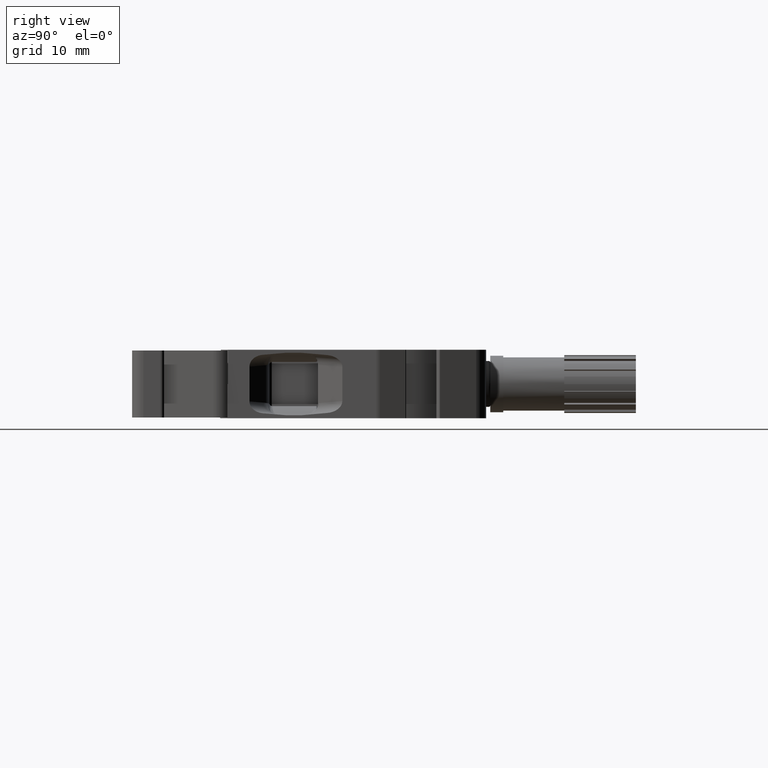
[diagram: clean part render]
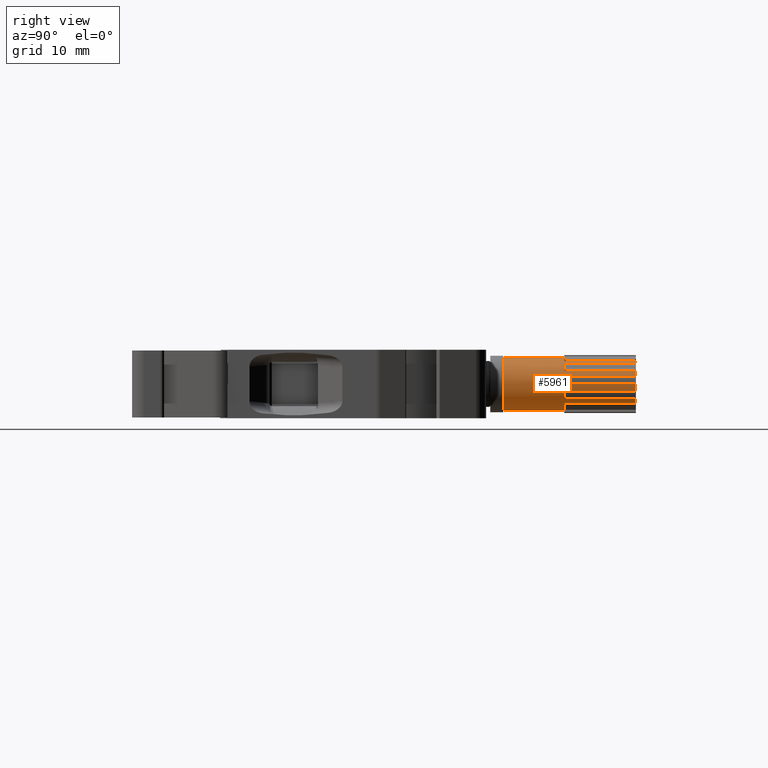
[diagram: same view with one face highlighted and labeled with its STEP entity id]
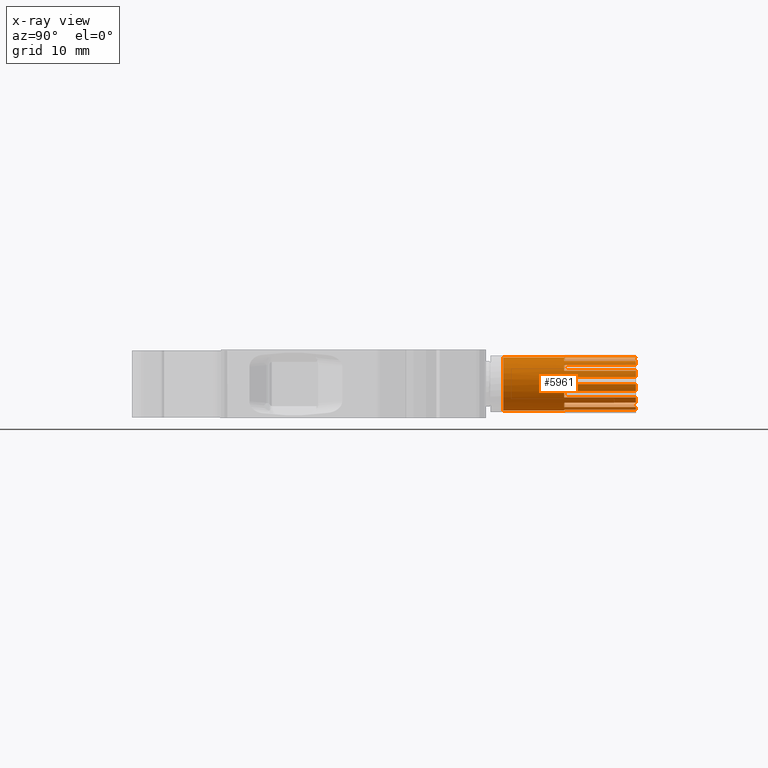
[diagram: x-ray of the same camera — body ghosted, the highlighted face saturated]
A machine part, right view. The second image highlights one B-rep face of the part: STEP entity #5961.
The next image is the same camera in x-ray: the body ghosted, the highlighted face saturated — about 0% of this face is hidden behind the body in this view.
In plain terms, the highlighted cylindrical surface (edge-blend (fillet) strip) has radius 3.5 mm, axis along (0, -1, 0).
Its self-contained STEP definition (entity closure, byte-faithful):
#2206 = VECTOR ( 'NONE', #15414, 1000.000000000000000 ) ;
#2215 = VECTOR ( 'NONE', #15723, 1000.000000000000000 ) ;
#2219 = VECTOR ( 'NONE', #14709, 1000.000000000000000 ) ;
#2229 = VECTOR ( 'NONE', #15489, 1000.000000000000000 ) ;
#2231 = VECTOR ( 'NONE', #15722, 1000.000000000000000 ) ;
#2243 = VECTOR ( 'NONE', #14828, 1000.000000000000000 ) ;
#2257 = VECTOR ( 'NONE', #15692, 1000.000000000000000 ) ;
#2266 = VECTOR ( 'NONE', #14710, 1000.000000000000000 ) ;
#2268 = VECTOR ( 'NONE', #15488, 1000.000000000000000 ) ;
#2277 = VECTOR ( 'NONE', #15846, 1000.000000000000000 ) ;
#2279 = VECTOR ( 'NONE', #14728, 1000.000000000000000 ) ;
#2291 = VECTOR ( 'NONE', #15646, 1000.000000000000000 ) ;
#2325 = VECTOR ( 'NONE', #15430, 1000.000000000000000 ) ;
#2330 = VECTOR ( 'NONE', #15442, 1000.000000000000000 ) ;
#4943 = ORIENTED_EDGE ( 'NONE', *, *, #7966, .T. ) ;
#4948 = ORIENTED_EDGE ( 'NONE', *, *, #7987, .T. ) ;
#4949 = ORIENTED_EDGE ( 'NONE', *, *, #7938, .T. ) ;
#4952 = ORIENTED_EDGE ( 'NONE', *, *, #7963, .T. ) ;
#4958 = ORIENTED_EDGE ( 'NONE', *, *, #7967, .F. ) ;
#4959 = ORIENTED_EDGE ( 'NONE', *, *, #7969, .T. ) ;
#4964 = ORIENTED_EDGE ( 'NONE', *, *, #7976, .T. ) ;
#4967 = ORIENTED_EDGE ( 'NONE', *, *, #7973, .T. ) ;
#4972 = ORIENTED_EDGE ( 'NONE', *, *, #7944, .T. ) ;
#4973 = ORIENTED_EDGE ( 'NONE', *, *, #7951, .T. ) ;
#4981 = ORIENTED_EDGE ( 'NONE', *, *, #7940, .T. ) ;
#4988 = ORIENTED_EDGE ( 'NONE', *, *, #7962, .T. ) ;
#4990 = ORIENTED_EDGE ( 'NONE', *, *, #7998, .T. ) ;
#5002 = ORIENTED_EDGE ( 'NONE', *, *, #7943, .T. ) ;
#5007 = ORIENTED_EDGE ( 'NONE', *, *, #7968, .T. ) ;
#5012 = ORIENTED_EDGE ( 'NONE', *, *, #7946, .T. ) ;
#5013 = ORIENTED_EDGE ( 'NONE', *, *, #7991, .T. ) ;
#5017 = ORIENTED_EDGE ( 'NONE', *, *, #7989, .T. ) ;
#5024 = ORIENTED_EDGE ( 'NONE', *, *, #7952, .T. ) ;
#5034 = ORIENTED_EDGE ( 'NONE', *, *, #7994, .T. ) ;
#5035 = ORIENTED_EDGE ( 'NONE', *, *, #7995, .T. ) ;
#5036 = ORIENTED_EDGE ( 'NONE', *, *, #7945, .T. ) ;
#5044 = ORIENTED_EDGE ( 'NONE', *, *, #8000, .T. ) ;
#5046 = ORIENTED_EDGE ( 'NONE', *, *, #7999, .T. ) ;
#5059 = ORIENTED_EDGE ( 'NONE', *, *, #7977, .T. ) ;
#5066 = ORIENTED_EDGE ( 'NONE', *, *, #7982, .T. ) ;
#5068 = ORIENTED_EDGE ( 'NONE', *, *, #7971, .T. ) ;
#5721 = EDGE_LOOP ( 'NONE', ( #4967, #5002, #4943, #4958, #4973, #4952, #4959, #4948, #4964, #4990, #4972, #4949, #4988, #4981, #5068, #5013, #5024, #5035, #5034, #5046, #5017, #5036, #5044, #5012, #5059, #5007, #5066 ) ) ;
#5961 = ADVANCED_FACE ( 'NONE', ( #20564 ), #20567, .T. ) ;
#7938 = EDGE_CURVE ( 'NONE', #9368, #9336, #15413, .T. ) ;
#7940 = EDGE_CURVE ( 'NONE', #9355, #9354, #15436, .T. ) ;
#7943 = EDGE_CURVE ( 'NONE', #9357, #9334, #15420, .T. ) ;
#7944 = EDGE_CURVE ( 'NONE', #9372, #9368, #21753, .T. ) ;
#7945 = EDGE_CURVE ( 'NONE', #9331, #9347, #15444, .T. ) ;
#7946 = EDGE_CURVE ( 'NONE', #9380, #9381, #15485, .T. ) ;
#7951 = EDGE_CURVE ( 'NONE', #9521, #9364, #21704, .T. ) ;
#7952 = EDGE_CURVE ( 'NONE', #9376, #9348, #21714, .T. ) ;
#7962 = EDGE_CURVE ( 'NONE', #9336, #9355, #21728, .T. ) ;
#7963 = EDGE_CURVE ( 'NONE', #9364, #9326, #15656, .T. ) ;
#7966 = EDGE_CURVE ( 'NONE', #9334, #9377, #21703, .T. ) ;
#7967 = EDGE_CURVE ( 'NONE', #9521, #9377, #15733, .T. ) ;
#7968 = EDGE_CURVE ( 'NONE', #9353, #9374, #15688, .T. ) ;
#7969 = EDGE_CURVE ( 'NONE', #9326, #9369, #21716, .T. ) ;
#7971 = EDGE_CURVE ( 'NONE', #9354, #9344, #21726, .T. ) ;
#7973 = EDGE_CURVE ( 'NONE', #9267, #9357, #15699, .T. ) ;
#7976 = EDGE_CURVE ( 'NONE', #9327, #9378, #21695, .T. ) ;
#7977 = EDGE_CURVE ( 'NONE', #9381, #9353, #21696, .T. ) ;
#7982 = EDGE_CURVE ( 'NONE', #9374, #9267, #21699, .T. ) ;
#7987 = EDGE_CURVE ( 'NONE', #9369, #9327, #15841, .T. ) ;
#7989 = EDGE_CURVE ( 'NONE', #9375, #9331, #21737, .T. ) ;
#7991 = EDGE_CURVE ( 'NONE', #9344, #9376, #15840, .T. ) ;
#7994 = EDGE_CURVE ( 'NONE', #9351, #9343, #21768, .T. ) ;
#7995 = EDGE_CURVE ( 'NONE', #9348, #9351, #14718, .T. ) ;
#7998 = EDGE_CURVE ( 'NONE', #9378, #9372, #14722, .T. ) ;
#7999 = EDGE_CURVE ( 'NONE', #9343, #9375, #14729, .T. ) ;
#8000 = EDGE_CURVE ( 'NONE', #9347, #9380, #21757, .T. ) ;
#9267 = VERTEX_POINT ( 'NONE', #13974 ) ;
#9326 = VERTEX_POINT ( 'NONE', #14211 ) ;
#9327 = VERTEX_POINT ( 'NONE', #14202 ) ;
#9331 = VERTEX_POINT ( 'NONE', #14118 ) ;
#9334 = VERTEX_POINT ( 'NONE', #14103 ) ;
#9336 = VERTEX_POINT ( 'NONE', #14146 ) ;
#9343 = VERTEX_POINT ( 'NONE', #14145 ) ;
#9344 = VERTEX_POINT ( 'NONE', #14120 ) ;
#9347 = VERTEX_POINT ( 'NONE', #14122 ) ;
#9348 = VERTEX_POINT ( 'NONE', #14134 ) ;
#9351 = VERTEX_POINT ( 'NONE', #14167 ) ;
#9353 = VERTEX_POINT ( 'NONE', #14152 ) ;
#9354 = VERTEX_POINT ( 'NONE', #14126 ) ;
#9355 = VERTEX_POINT ( 'NONE', #14130 ) ;
#9357 = VERTEX_POINT ( 'NONE', #14136 ) ;
#9364 = VERTEX_POINT ( 'NONE', #14165 ) ;
#9368 = VERTEX_POINT ( 'NONE', #14178 ) ;
#9369 = VERTEX_POINT ( 'NONE', #14180 ) ;
#9372 = VERTEX_POINT ( 'NONE', #14314 ) ;
#9374 = VERTEX_POINT ( 'NONE', #14246 ) ;
#9375 = VERTEX_POINT ( 'NONE', #14280 ) ;
#9376 = VERTEX_POINT ( 'NONE', #14286 ) ;
#9377 = VERTEX_POINT ( 'NONE', #14325 ) ;
#9378 = VERTEX_POINT ( 'NONE', #14301 ) ;
#9380 = VERTEX_POINT ( 'NONE', #14294 ) ;
#9381 = VERTEX_POINT ( 'NONE', #14288 ) ;
#9521 = VERTEX_POINT ( 'NONE', #14524 ) ;
#13974 = CARTESIAN_POINT ( 'NONE',  ( 459.1252094327940100, 163.1878730676890000, 34.90000000000313900 ) ) ;
#14103 = CARTESIAN_POINT ( 'NONE',  ( 459.1252094327940100, 145.7878730676890200, 34.90000000000313900 ) ) ;
#14118 = CARTESIAN_POINT ( 'NONE',  ( 461.6041506046875000, 153.7878730676890500, 33.87079960059762800 ) ) ;
#14120 = CARTESIAN_POINT ( 'NONE',  ( 462.6251999634724800, 163.1878730676890000, 31.39185842870423900 ) ) ;
#14122 = CARTESIAN_POINT ( 'NONE',  ( 461.6041506046875000, 163.1878730676890000, 33.87079960059763600 ) ) ;
#14126 = CARTESIAN_POINT ( 'NONE',  ( 462.5039058980307200, 163.1878730676890000, 30.48653943937415200 ) ) ;
#14130 = CARTESIAN_POINT ( 'NONE',  ( 462.5039058980307200, 153.7878730676890500, 30.48653943937416200 ) ) ;
#14134 = CARTESIAN_POINT ( 'NONE',  ( 462.5079766836785800, 153.7878730676890500, 32.29826818176122300 ) ) ;
#14136 = CARTESIAN_POINT ( 'NONE',  ( 459.1252094327940100, 153.7878730676890500, 34.90000000000313900 ) ) ;
#14145 = CARTESIAN_POINT ( 'NONE',  ( 462.1598175993221400, 163.1878730676890000, 33.14389027053398700 ) ) ;
#14146 = CARTESIAN_POINT ( 'NONE',  ( 462.1527667917530900, 153.7878730676890500, 29.64389737252208700 ) ) ;
#14152 = CARTESIAN_POINT ( 'NONE',  ( 460.0331113193023500, 153.7878730676890500, 34.78019439744173300 ) ) ;
#14165 = CARTESIAN_POINT ( 'NONE',  ( 460.0290405336543200, 153.7878730676890500, 28.01871483883131100 ) ) ;
#14167 = CARTESIAN_POINT ( 'NONE',  ( 462.5079766836785800, 163.1878730676890000, 32.29826818176123000 ) ) ;
#14178 = CARTESIAN_POINT ( 'NONE',  ( 462.1527667917530900, 163.1878730676890000, 29.64389737252208700 ) ) ;
#14180 = CARTESIAN_POINT ( 'NONE',  ( 460.8716828453469800, 163.1878730676890000, 28.36687774409474400 ) ) ;
#14202 = CARTESIAN_POINT ( 'NONE',  ( 460.8716828453469800, 153.7878730676890500, 28.36687774409474700 ) ) ;
#14211 = CARTESIAN_POINT ( 'NONE',  ( 460.0290405336543200, 163.1878730676890000, 28.01871483883131100 ) ) ;
#14246 = CARTESIAN_POINT ( 'NONE',  ( 460.0331113193023500, 163.1878730676890000, 34.78019439744174000 ) ) ;
#14280 = CARTESIAN_POINT ( 'NONE',  ( 462.1598175993221400, 153.7878730676890500, 33.14389027053398700 ) ) ;
#14286 = CARTESIAN_POINT ( 'NONE',  ( 462.6251999634724800, 153.7878730676890500, 31.39185842870423900 ) ) ;
#14288 = CARTESIAN_POINT ( 'NONE',  ( 460.8787336529158600, 153.7878730676890500, 34.42905147025734900 ) ) ;
#14294 = CARTESIAN_POINT ( 'NONE',  ( 460.8787336529158600, 163.1878730676890000, 34.42905147025734900 ) ) ;
#14301 = CARTESIAN_POINT ( 'NONE',  ( 461.5960090333915700, 153.7878730676890500, 28.92105882810642800 ) ) ;
#14314 = CARTESIAN_POINT ( 'NONE',  ( 461.5960090333915700, 163.1878730676890000, 28.92105882810642100 ) ) ;
#14325 = CARTESIAN_POINT ( 'NONE',  ( 459.1252094327940100, 145.7878730676890200, 27.89999999999686200 ) ) ;
#14524 = CARTESIAN_POINT ( 'NONE',  ( 459.1252094327940100, 153.7878730676890500, 27.89999999999686200 ) ) ;
#14691 = CARTESIAN_POINT ( 'NONE',  ( 462.5079766836785800, 163.1878730676890000, 32.29826818176123000 ) ) ;
#14696 = CARTESIAN_POINT ( 'NONE',  ( 462.5079766836785800, 167.7878730676890500, 32.29826818176123000 ) ) ;
#14700 = CARTESIAN_POINT ( 'NONE',  ( 462.0074195755361200, 153.7878730676890500, 33.40908372642843500 ) ) ;
#14706 = CARTESIAN_POINT ( 'NONE',  ( 462.1598175993221400, 153.7878730676890500, 33.14389027053398700 ) ) ;
#14709 = DIRECTION ( 'NONE',  ( -0.0000000000000000000, 1.000000000000000000, -2.935721225546184700E-020 ) ) ;
#14710 = DIRECTION ( 'NONE',  ( 0.0000000000000000000, -1.000000000000000000, 2.935721225546184700E-020 ) ) ;
#14711 = CARTESIAN_POINT ( 'NONE',  ( 462.3121358191667100, 163.1878730676890000, 32.87883568443891800 ) ) ;
#14712 = CARTESIAN_POINT ( 'NONE',  ( 462.1598175993221400, 163.1878730676890000, 33.14389027053398700 ) ) ;
#14718 = LINE ( 'NONE', #14696, #2219 ) ;
#14722 = LINE ( 'NONE', #14730, #2279 ) ;
#14728 = DIRECTION ( 'NONE',  ( -0.0000000000000000000, 1.000000000000000000, -2.935721225546184700E-020 ) ) ;
#14729 = LINE ( 'NONE', #14731, #2243 ) ;
#14730 = CARTESIAN_POINT ( 'NONE',  ( 461.5960090333915700, 167.7878730676890500, 28.92105882810643500 ) ) ;
#14731 = CARTESIAN_POINT ( 'NONE',  ( 462.1598175993220800, 167.7878730676890500, 33.14389027053396600 ) ) ;
#14733 = CARTESIAN_POINT ( 'NONE',  ( 461.8200730068389200, 153.7878730676890500, 33.65416570908418200 ) ) ;
#14737 = CARTESIAN_POINT ( 'NONE',  ( 462.4295184155748800, 163.1878730676890000, 32.59373234857818600 ) ) ;
#14739 = CARTESIAN_POINT ( 'NONE',  ( 462.6251999634724800, 167.7878730676890500, 31.39185842870423900 ) ) ;
#14742 = CARTESIAN_POINT ( 'NONE',  ( 461.6041506046875000, 153.7878730676890500, 33.87079960059762800 ) ) ;
#14828 = DIRECTION ( 'NONE',  ( 0.0000000000000000000, -1.000000000000000000, 2.935721225546184700E-020 ) ) ;
#14862 = CARTESIAN_POINT ( 'NONE',  ( 461.6041506046875000, 163.1878730676890000, 33.87079960059763600 ) ) ;
#14992 = CARTESIAN_POINT ( 'NONE',  ( 461.3881358824423800, 163.1878730676890000, 34.08752611641015300 ) ) ;
#15197 = CARTESIAN_POINT ( 'NONE',  ( 461.1435546897394600, 163.1878730676890000, 34.27574601915234400 ) ) ;
#15251 = CARTESIAN_POINT ( 'NONE',  ( 460.8787336529158600, 163.1878730676890000, 34.42905147025734900 ) ) ;
#15409 = CARTESIAN_POINT ( 'NONE',  ( 459.1252094327940100, 167.7878730676890500, 34.90000000000313900 ) ) ;
#15413 = LINE ( 'NONE', #15435, #2206 ) ;
#15414 = DIRECTION ( 'NONE',  ( 0.0000000000000000000, -1.000000000000000000, 2.935721225546184700E-020 ) ) ;
#15420 = LINE ( 'NONE', #15409, #2330 ) ;
#15424 = CARTESIAN_POINT ( 'NONE',  ( 461.5960090333915700, 163.1878730676890000, 28.92105882810642100 ) ) ;
#15430 = DIRECTION ( 'NONE',  ( -0.0000000000000000000, 1.000000000000000000, -2.935721225546184700E-020 ) ) ;
#15432 = CARTESIAN_POINT ( 'NONE',  ( 462.1527667917530900, 163.1878730676890000, 29.64389737252208700 ) ) ;
#15435 = CARTESIAN_POINT ( 'NONE',  ( 462.1527667917530400, 167.7878730676890500, 29.64389737252209400 ) ) ;
#15436 = LINE ( 'NONE', #15449, #2325 ) ;
#15442 = DIRECTION ( 'NONE',  ( 0.0000000000000000000, -1.000000000000000000, 2.935721225546184700E-020 ) ) ;
#15443 = CARTESIAN_POINT ( 'NONE',  ( 461.9997343210578200, 163.1878730676890000, 29.38006621848623100 ) ) ;
#15444 = LINE ( 'NONE', #15461, #2229 ) ;
#15445 = CARTESIAN_POINT ( 'NONE',  ( 461.8120319960060000, 163.1878730676890000, 29.13637230782894600 ) ) ;
#15449 = CARTESIAN_POINT ( 'NONE',  ( 462.5039058980307200, 167.7878730676890500, 30.48653943937416200 ) ) ;
#15461 = CARTESIAN_POINT ( 'NONE',  ( 461.6041506046874500, 167.7878730676890500, 33.87079960059762800 ) ) ;
#15485 = LINE ( 'NONE', #15502, #2268 ) ;
#15488 = DIRECTION ( 'NONE',  ( 0.0000000000000000000, -1.000000000000000000, 2.935721225546184700E-020 ) ) ;
#15489 = DIRECTION ( 'NONE',  ( -0.0000000000000000000, 1.000000000000000000, -2.935721225546184700E-020 ) ) ;
#15502 = CARTESIAN_POINT ( 'NONE',  ( 460.8787336529158000, 167.7878730676890500, 34.42905147025732800 ) ) ;
#15515 = CARTESIAN_POINT ( 'NONE',  ( 462.6251999634724800, 153.7878730676890500, 31.39185842870423900 ) ) ;
#15532 = CARTESIAN_POINT ( 'NONE',  ( 462.6259106647060000, 153.7878730676890500, 31.69738269387883300 ) ) ;
#15535 = CARTESIAN_POINT ( 'NONE',  ( 459.7346463122410100, 153.7878730676890500, 27.94002208133110400 ) ) ;
#15536 = CARTESIAN_POINT ( 'NONE',  ( 462.5079766836785800, 153.7878730676890500, 32.29826818176122300 ) ) ;
#15542 = CARTESIAN_POINT ( 'NONE',  ( 459.1252094327940100, 153.7878730676890500, 27.89999999999686200 ) ) ;
#15543 = CARTESIAN_POINT ( 'NONE',  ( 459.4299396539479400, 153.7878730676890500, 27.89999999999686200 ) ) ;
#15546 = CARTESIAN_POINT ( 'NONE',  ( 462.5863891032999500, 153.7878730676890500, 32.00297667467739200 ) ) ;
#15557 = CARTESIAN_POINT ( 'NONE',  ( 460.0290405336543200, 153.7878730676890500, 28.01871483883131100 ) ) ;
#15642 = CARTESIAN_POINT ( 'NONE',  ( 462.4242621844240900, 153.7878730676890500, 30.19195427035879600 ) ) ;
#15646 = DIRECTION ( 'NONE',  ( -0.0000000000000000000, 1.000000000000000000, -2.935721225546184700E-020 ) ) ;
#15651 = CARTESIAN_POINT ( 'NONE',  ( 462.5039058980307200, 153.7878730676890500, 30.48653943937416200 ) ) ;
#15654 = CARTESIAN_POINT ( 'NONE',  ( 460.0290405336543200, 167.7878730676890500, 28.01871483883131500 ) ) ;
#15656 = LINE ( 'NONE', #15654, #2291 ) ;
#15657 = CARTESIAN_POINT ( 'NONE',  ( 459.1252094327940100, 145.7878730676890200, 34.90000000000313900 ) ) ;
#15658 = CARTESIAN_POINT ( 'NONE',  ( 459.5833583614428900, 145.7878730676890200, 34.90000000000314600 ) ) ;
#15660 = CARTESIAN_POINT ( 'NONE',  ( 460.0413270280523600, 145.7878730676890200, 34.80890436834216900 ) ) ;
#15661 = CARTESIAN_POINT ( 'NONE',  ( 461.2761229527081400, 145.7878730676890200, 34.19883394839614300 ) ) ;
#15663 = CARTESIAN_POINT ( 'NONE',  ( 461.9240433811901300, 145.7878730676890200, 33.55091351991412600 ) ) ;
#15665 = CARTESIAN_POINT ( 'NONE',  ( 462.1834617920367200, 145.7878730676890200, 33.16266643129972600 ) ) ;
#15667 = CARTESIAN_POINT ( 'NONE',  ( 462.3058796252515800, 153.7878730676890500, 29.90786707369799700 ) ) ;
#15671 = CARTESIAN_POINT ( 'NONE',  ( 462.5341138011362400, 145.7878730676890200, 32.31611759525830500 ) ) ;
#15672 = CARTESIAN_POINT ( 'NONE',  ( 462.6252094327971300, 145.7878730676890200, 31.85814892864891600 ) ) ;
#15674 = CARTESIAN_POINT ( 'NONE',  ( 462.6252094327971300, 145.7878730676890200, 30.94185107135108500 ) ) ;
#15675 = CARTESIAN_POINT ( 'NONE',  ( 462.1834617920366100, 145.7878730676890200, 29.63733356870027100 ) ) ;
#15676 = CARTESIAN_POINT ( 'NONE',  ( 462.5341138011361900, 145.7878730676890200, 30.48388240474169600 ) ) ;
#15681 = CARTESIAN_POINT ( 'NONE',  ( 460.8878758640937000, 145.7878730676889900, 34.45825235924263600 ) ) ;
#15682 = CARTESIAN_POINT ( 'NONE',  ( 461.9240433811900200, 145.7878730676890200, 29.24908648008587200 ) ) ;
#15683 = CARTESIAN_POINT ( 'NONE',  ( 461.2761229527080800, 145.7878730676890200, 28.60116605160385800 ) ) ;
#15686 = CARTESIAN_POINT ( 'NONE',  ( 462.1527667917530900, 153.7878730676890500, 29.64389737252208700 ) ) ;
#15688 = LINE ( 'NONE', #15689, #2215 ) ;
#15689 = CARTESIAN_POINT ( 'NONE',  ( 460.0331113193023500, 167.7878730676890500, 34.78019439744173300 ) ) ;
#15692 = DIRECTION ( 'NONE',  ( 0.0000000000000000000, -1.000000000000000000, 2.935721225546184700E-020 ) ) ;
#15693 = CARTESIAN_POINT ( 'NONE',  ( 460.8716828453469800, 163.1878730676890000, 28.36687774409474400 ) ) ;
#15699 = LINE ( 'NONE', #15735, #2257 ) ;
#15701 = CARTESIAN_POINT ( 'NONE',  ( 460.3234809985239600, 163.1878730676890000, 28.09741995739307200 ) ) ;
#15703 = CARTESIAN_POINT ( 'NONE',  ( 462.6251999634724800, 163.1878730676890000, 31.39185842870423900 ) ) ;
#15704 = CARTESIAN_POINT ( 'NONE',  ( 460.0413270280523100, 145.7878730676890500, 27.99109563165784200 ) ) ;
#15706 = CARTESIAN_POINT ( 'NONE',  ( 460.6075602160901200, 163.1878730676890000, 28.21479579330873100 ) ) ;
#15707 = CARTESIAN_POINT ( 'NONE',  ( 459.1252094327940100, 167.7878730676890500, 27.89999999999686200 ) ) ;
#15709 = CARTESIAN_POINT ( 'NONE',  ( 462.5039058980307200, 163.1878730676890000, 30.48653943937415200 ) ) ;
#15718 = CARTESIAN_POINT ( 'NONE',  ( 459.1252094327940100, 145.7878730676890200, 27.89999999999686200 ) ) ;
#15722 = DIRECTION ( 'NONE',  ( 0.0000000000000000000, -1.000000000000000000, 2.935721225546184700E-020 ) ) ;
#15723 = DIRECTION ( 'NONE',  ( -0.0000000000000000000, 1.000000000000000000, -2.935721225546184700E-020 ) ) ;
#15730 = CARTESIAN_POINT ( 'NONE',  ( 460.8878758640937600, 145.7878730676890200, 28.34174764075736200 ) ) ;
#15732 = CARTESIAN_POINT ( 'NONE',  ( 462.5835962355533900, 163.1878730676890000, 30.78129706034584600 ) ) ;
#15733 = LINE ( 'NONE', #15707, #2231 ) ;
#15735 = CARTESIAN_POINT ( 'NONE',  ( 459.1252094327940100, 167.7878730676890500, 34.90000000000313900 ) ) ;
#15736 = CARTESIAN_POINT ( 'NONE',  ( 462.6244896924520200, 163.1878730676890000, 31.08651910838919700 ) ) ;
#15737 = CARTESIAN_POINT ( 'NONE',  ( 460.0290405336543200, 163.1878730676890000, 28.01871483883131100 ) ) ;
#15738 = CARTESIAN_POINT ( 'NONE',  ( 459.5833583614430000, 145.7878730676890500, 27.89999999999686200 ) ) ;
#15743 = CARTESIAN_POINT ( 'NONE',  ( 461.1358856115500700, 153.7878730676890500, 28.51900583777722500 ) ) ;
#15757 = CARTESIAN_POINT ( 'NONE',  ( 461.3800786950762900, 153.7878730676890500, 28.70583766847778800 ) ) ;
#15758 = CARTESIAN_POINT ( 'NONE',  ( 461.5960090333915700, 153.7878730676890500, 28.92105882810642800 ) ) ;
#15767 = CARTESIAN_POINT ( 'NONE',  ( 460.8716828453469800, 153.7878730676890500, 28.36687774409474700 ) ) ;
#15776 = CARTESIAN_POINT ( 'NONE',  ( 460.0331113193023500, 153.7878730676890500, 34.78019439744173300 ) ) ;
#15778 = CARTESIAN_POINT ( 'NONE',  ( 460.6138325866980900, 153.7878730676890500, 34.58240325054564600 ) ) ;
#15783 = CARTESIAN_POINT ( 'NONE',  ( 460.3287210534708700, 153.7878730676890500, 34.70079522574765500 ) ) ;
#15784 = CARTESIAN_POINT ( 'NONE',  ( 460.8787336529158600, 153.7878730676890500, 34.42905147025734900 ) ) ;
#15804 = CARTESIAN_POINT ( 'NONE',  ( 459.1252094327940100, 163.1878730676890000, 34.90000000000313900 ) ) ;
#15805 = CARTESIAN_POINT ( 'NONE',  ( 459.4313444498384900, 163.1878730676890000, 34.90000000000313900 ) ) ;
#15820 = CARTESIAN_POINT ( 'NONE',  ( 459.7374553565956600, 163.1878730676890000, 34.85960598587049500 ) ) ;
#15831 = CARTESIAN_POINT ( 'NONE',  ( 460.0331113193023500, 163.1878730676890000, 34.78019439744174000 ) ) ;
#15840 = LINE ( 'NONE', #14739, #2266 ) ;
#15841 = LINE ( 'NONE', #15845, #2277 ) ;
#15845 = CARTESIAN_POINT ( 'NONE',  ( 460.8716828453469800, 167.7878730676890500, 28.36687774409477600 ) ) ;
#15846 = DIRECTION ( 'NONE',  ( 0.0000000000000000000, -1.000000000000000000, 2.935721225546184700E-020 ) ) ;
#19458 = AXIS2_PLACEMENT_3D ( 'NONE', #20599, #20601, #20568 ) ;
#20564 = FACE_OUTER_BOUND ( 'NONE', #5721, .T. ) ;
#20567 = CYLINDRICAL_SURFACE ( 'NONE', #19458, 3.500000000003136200 ) ;
#20568 = DIRECTION ( 'NONE',  ( 0.0000000000000000000, 0.0000000000000000000, -1.000000000000000000 ) ) ;
#20599 = CARTESIAN_POINT ( 'NONE',  ( 459.1252094327940100, 167.7878730676890500, 31.39999999999999900 ) ) ;
#20601 = DIRECTION ( 'NONE',  ( 0.0000000000000000000, -1.000000000000000000, 2.935721225546184700E-020 ) ) ;
#21695 = B_SPLINE_CURVE_WITH_KNOTS ( 'NONE', 3,
 ( #15767, #15743, #15757, #15758 ),
 .UNSPECIFIED., .F., .F.,
 ( 4, 4 ),
 ( 0.0000000000000000000, 1.000000000000000000 ),
 .UNSPECIFIED. ) ;
#21696 = B_SPLINE_CURVE_WITH_KNOTS ( 'NONE', 3,
 ( #15784, #15778, #15783, #15776 ),
 .UNSPECIFIED., .F., .F.,
 ( 4, 4 ),
 ( 0.0000000000000000000, 1.000000000000000000 ),
 .UNSPECIFIED. ) ;
#21699 = B_SPLINE_CURVE_WITH_KNOTS ( 'NONE', 3,
 ( #15831, #15820, #15805, #15804 ),
 .UNSPECIFIED., .F., .F.,
 ( 4, 4 ),
 ( 0.0000000000000000000, 1.000000000000000000 ),
 .UNSPECIFIED. ) ;
#21703 = B_SPLINE_CURVE_WITH_KNOTS ( 'NONE', 3,
 ( #15657, #15658, #15660, #15681, #15661, #15663, #15665, #15671, #15672, #15674, #15676, #15675, #15682, #15683, #15730, #15704, #15738, #15718 ),
 .UNSPECIFIED., .F., .F.,
 ( 4, 2, 2, 2, 2, 2, 2, 2, 4 ),
 ( 0.0000000000000000000, 0.1250000000000000000, 0.2500000000000000000, 0.3750000000000000000, 0.5000000000000000000, 0.6250000000000000000, 0.7500000000000000000, 0.8750000000000000000, 1.000000000000000000 ),
 .UNSPECIFIED. ) ;
#21704 = B_SPLINE_CURVE_WITH_KNOTS ( 'NONE', 3,
 ( #15542, #15543, #15535, #15557 ),
 .UNSPECIFIED., .F., .F.,
 ( 4, 4 ),
 ( 0.0000000000000000000, 1.000000000000000000 ),
 .UNSPECIFIED. ) ;
#21714 = B_SPLINE_CURVE_WITH_KNOTS ( 'NONE', 3,
 ( #15515, #15532, #15546, #15536 ),
 .UNSPECIFIED., .F., .F.,
 ( 4, 4 ),
 ( 0.0000000000000000000, 1.000000000000000000 ),
 .UNSPECIFIED. ) ;
#21716 = B_SPLINE_CURVE_WITH_KNOTS ( 'NONE', 3,
 ( #15737, #15701, #15706, #15693 ),
 .UNSPECIFIED., .F., .F.,
 ( 4, 4 ),
 ( 0.0000000000000000000, 1.000000000000000000 ),
 .UNSPECIFIED. ) ;
#21726 = B_SPLINE_CURVE_WITH_KNOTS ( 'NONE', 3,
 ( #15709, #15732, #15736, #15703 ),
 .UNSPECIFIED., .F., .F.,
 ( 4, 4 ),
 ( 0.0000000000000000000, 1.000000000000000000 ),
 .UNSPECIFIED. ) ;
#21728 = B_SPLINE_CURVE_WITH_KNOTS ( 'NONE', 3,
 ( #15686, #15667, #15642, #15651 ),
 .UNSPECIFIED., .F., .F.,
 ( 4, 4 ),
 ( 0.0000000000000000000, 1.000000000000000000 ),
 .UNSPECIFIED. ) ;
#21737 = B_SPLINE_CURVE_WITH_KNOTS ( 'NONE', 3,
 ( #14706, #14700, #14733, #14742 ),
 .UNSPECIFIED., .F., .F.,
 ( 4, 4 ),
 ( 0.0000000000000000000, 1.000000000000000000 ),
 .UNSPECIFIED. ) ;
#21753 = B_SPLINE_CURVE_WITH_KNOTS ( 'NONE', 3,
 ( #15424, #15445, #15443, #15432 ),
 .UNSPECIFIED., .F., .F.,
 ( 4, 4 ),
 ( 0.0000000000000000000, 1.000000000000000000 ),
 .UNSPECIFIED. ) ;
#21757 = B_SPLINE_CURVE_WITH_KNOTS ( 'NONE', 3,
 ( #14862, #14992, #15197, #15251 ),
 .UNSPECIFIED., .F., .F.,
 ( 4, 4 ),
 ( 0.0000000000000000000, 1.000000000000000000 ),
 .UNSPECIFIED. ) ;
#21768 = B_SPLINE_CURVE_WITH_KNOTS ( 'NONE', 3,
 ( #14691, #14737, #14711, #14712 ),
 .UNSPECIFIED., .F., .F.,
 ( 4, 4 ),
 ( 0.0000000000000000000, 1.000000000000000000 ),
 .UNSPECIFIED. ) ;